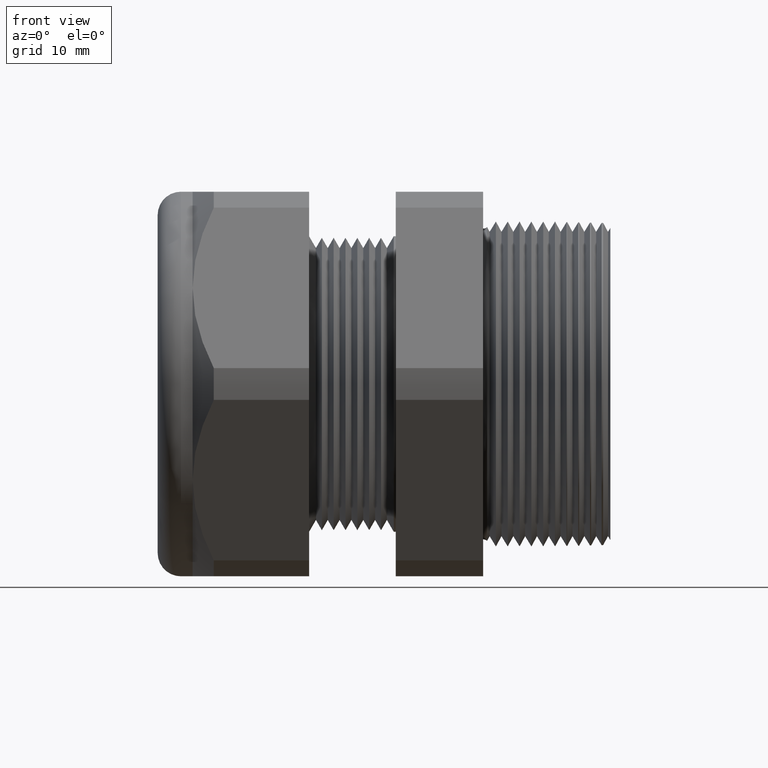
[diagram: clean part render]
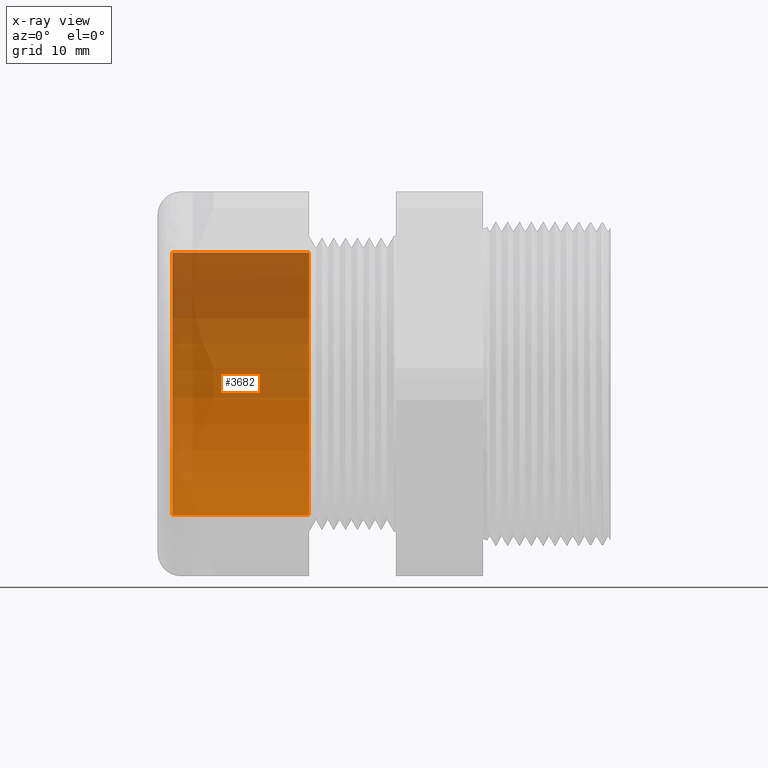
[diagram: x-ray — body ghosted, one internal face saturated and labeled with its STEP entity id]
A machine part, front view, then the same camera in x-ray: the body is ghosted and one INTERNAL B-rep face — a face not visible from any outside direction — is saturated and labeled: STEP entity #3682.
In plain terms, the highlighted cylindrical surface (partial cylindrical patch) has radius 11.2776 mm, axis along (1, 0, 0).
Its self-contained STEP definition (entity closure, byte-faithful):
#39 = EDGE_CURVE ( 'NONE', #3690, #3681, #373, .T. ) ;
#40 = ORIENTED_EDGE ( 'NONE', *, *, #39, .F. ) ;
#370 = DIRECTION ( 'NONE',  ( 1.000000000000000000, 0.0000000000000000000, 0.0000000000000000000 ) ) ;
#371 = VECTOR ( 'NONE', #370, 39.37007874015748100 ) ;
#372 = CARTESIAN_POINT ( 'NONE',  ( 0.0000000000000000000, 0.0000000000000000000, -0.4439999999999999500 ) ) ;
#373 = LINE ( 'NONE', #372, #371 ) ;
#2200 = CARTESIAN_POINT ( 'NONE',  ( -0.8981889763779525900, 5.437431788214247900E-017, 0.4439999999999999500 ) ) ;
#2258 = CARTESIAN_POINT ( 'NONE',  ( -1.359999999999999900, 0.0000000000000000000, -0.4439999999999999500 ) ) ;
#2264 = DIRECTION ( 'NONE',  ( 1.000000000000000000, 0.0000000000000000000, 0.0000000000000000000 ) ) ;
#2265 = VECTOR ( 'NONE', #2264, 39.37007874015748100 ) ;
#2266 = CARTESIAN_POINT ( 'NONE',  ( 0.0000000000000000000, 5.437431788214247900E-017, 0.4439999999999999500 ) ) ;
#2267 = DIRECTION ( 'NONE',  ( 0.0000000000000000000, 0.0000000000000000000, -1.000000000000000000 ) ) ;
#2268 = DIRECTION ( 'NONE',  ( 1.000000000000000000, 0.0000000000000000000, 0.0000000000000000000 ) ) ;
#2269 = CARTESIAN_POINT ( 'NONE',  ( 0.0000000000000000000, 0.0000000000000000000, 0.0000000000000000000 ) ) ;
#2270 = AXIS2_PLACEMENT_3D ( 'NONE', #2269, #2268, #2267 ) ;
#2271 = LINE ( 'NONE', #2266, #2265 ) ;
#2272 = CYLINDRICAL_SURFACE ( 'NONE', #2270, 0.4439999999999999500 ) ;
#2273 = FACE_OUTER_BOUND ( 'NONE', #3684, .T. ) ;
#2274 = CARTESIAN_POINT ( 'NONE',  ( -0.8981889763779525900, 0.0000000000000000000, -0.4439999999999999500 ) ) ;
#2280 = DIRECTION ( 'NONE',  ( 0.0000000000000000000, 0.0000000000000000000, -1.000000000000000000 ) ) ;
#2281 = DIRECTION ( 'NONE',  ( 1.000000000000000000, 0.0000000000000000000, 0.0000000000000000000 ) ) ;
#2282 = AXIS2_PLACEMENT_3D ( 'NONE', #2287, #2281, #2280 ) ;
#2283 = CIRCLE ( 'NONE', #2282, 0.4439999999999999500 ) ;
#2287 = CARTESIAN_POINT ( 'NONE',  ( -0.8981889763779525900, 0.0000000000000000000, 0.0000000000000000000 ) ) ;
#2311 = DIRECTION ( 'NONE',  ( 0.0000000000000000000, 0.0000000000000000000, -1.000000000000000000 ) ) ;
#2312 = DIRECTION ( 'NONE',  ( 1.000000000000000000, 0.0000000000000000000, 0.0000000000000000000 ) ) ;
#2313 = CARTESIAN_POINT ( 'NONE',  ( -1.359999999999999900, 0.0000000000000000000, 0.0000000000000000000 ) ) ;
#2314 = AXIS2_PLACEMENT_3D ( 'NONE', #2313, #2312, #2311 ) ;
#2315 = CIRCLE ( 'NONE', #2314, 0.4439999999999999500 ) ;
#2385 = CARTESIAN_POINT ( 'NONE',  ( -1.359999999999999900, 5.437431788214247900E-017, 0.4439999999999999500 ) ) ;
#3652 = ORIENTED_EDGE ( 'NONE', *, *, #3677, .F. ) ;
#3653 = VERTEX_POINT ( 'NONE', #2200 ) ;
#3677 = EDGE_CURVE ( 'NONE', #3681, #3653, #2283, .T. ) ;
#3681 = VERTEX_POINT ( 'NONE', #2274 ) ;
#3682 = ADVANCED_FACE ( 'NONE', ( #2273 ), #2272, .T. ) ;
#3683 = ORIENTED_EDGE ( 'NONE', *, *, #3696, .T. ) ;
#3684 = EDGE_LOOP ( 'NONE', ( #3683, #3686, #3652, #40 ) ) ;
#3685 = EDGE_CURVE ( 'NONE', #3748, #3653, #2271, .T. ) ;
#3686 = ORIENTED_EDGE ( 'NONE', *, *, #3685, .T. ) ;
#3690 = VERTEX_POINT ( 'NONE', #2258 ) ;
#3696 = EDGE_CURVE ( 'NONE', #3690, #3748, #2315, .T. ) ;
#3748 = VERTEX_POINT ( 'NONE', #2385 ) ;